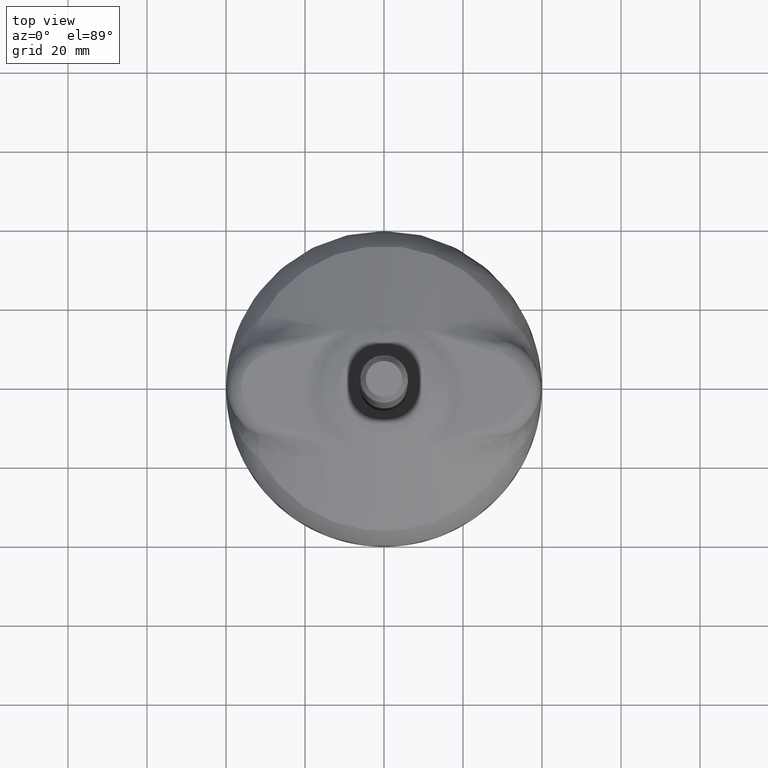
[diagram: clean part render]
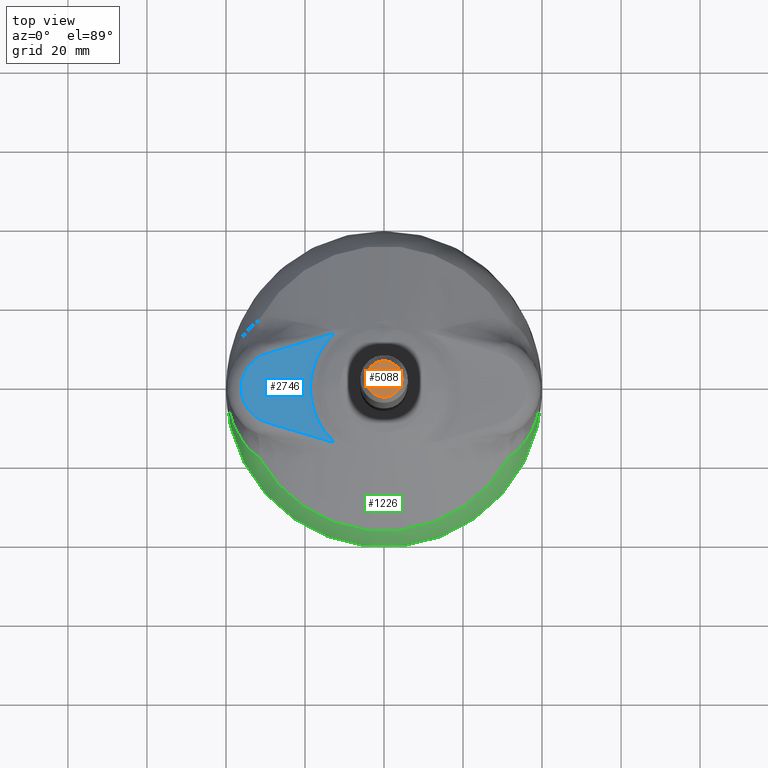
[diagram: same view with three faces highlighted in distinct colors, each labeled with its STEP entity id]
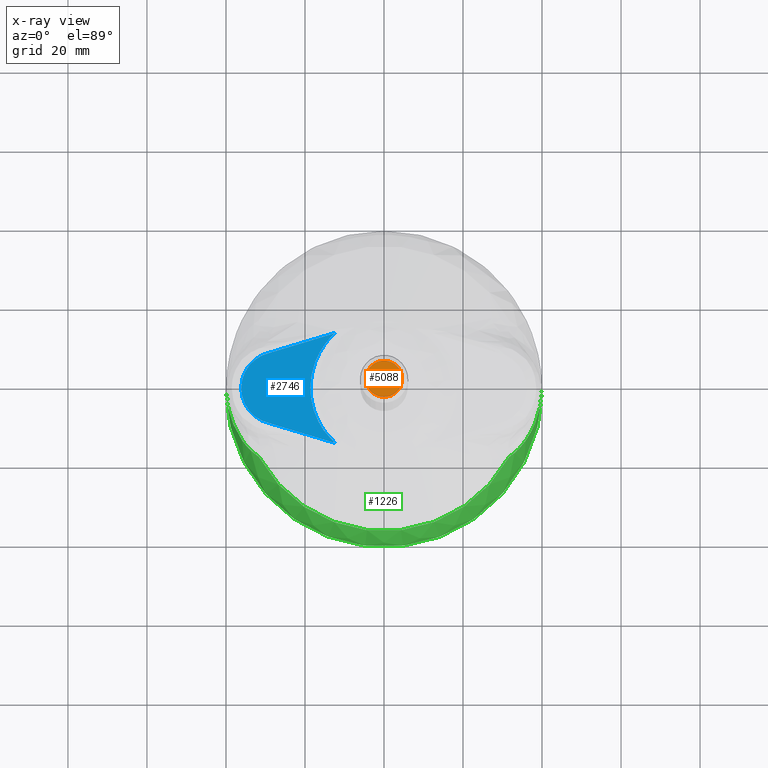
[diagram: x-ray of the same camera — body ghosted, the three highlighted faces saturated]
A machine part, top view with three faces highlighted in distinct colors.
The next image is the same camera in x-ray (body ghosted, the three faces saturated) — at least one of them is partly hidden behind the body in this view.
Their STEP definitions:

[orange] entity #5088 — the highlighted planar face has unit normal (0, 0, 1).
#5051=CARTESIAN_POINT('',(4.584953001807092,4.085621E-014,146.539294837048630));
#5052=VERTEX_POINT('',#5051);
#5059=CARTESIAN_POINT('',(-4.584959343808055,4.085621E-014,146.539294837048630));
#5060=VERTEX_POINT('',#5059);
#5061=CARTESIAN_POINT('',(-0.000003171000481,4.085621E-014,146.539294837048630));
#5062=DIRECTION('',(0.0,0.0,1.0));
#5063=DIRECTION('',(1.0,0.0,0.0));
#5064=AXIS2_PLACEMENT_3D('',#5061,#5062,#5063);
#5065=CIRCLE('',#5064,4.584956172807574);
#5066=EDGE_CURVE('',#5060,#5052,#5065,.T.);
#5068=CARTESIAN_POINT('',(-0.000003171000481,4.085621E-014,146.539294837048630));
#5069=DIRECTION('',(0.0,0.0,1.0));
#5070=DIRECTION('',(1.0,0.0,0.0));
#5071=AXIS2_PLACEMENT_3D('',#5068,#5069,#5070);
#5072=CIRCLE('',#5071,4.584956172807574);
#5073=EDGE_CURVE('',#5052,#5060,#5072,.T.);
#5079=CARTESIAN_POINT('',(9.169909174614666,-9.169912345615106,146.539294837048630));
#5080=DIRECTION('',(0.0,0.0,1.0));
#5081=DIRECTION('',(0.0,1.0,0.0));
#5082=AXIS2_PLACEMENT_3D('',#5079,#5080,#5081);
#5083=PLANE('',#5082);
#5084=ORIENTED_EDGE('',*,*,#5073,.T.);
#5085=ORIENTED_EDGE('',*,*,#5066,.T.);
#5086=EDGE_LOOP('',(#5084,#5085));
#5087=FACE_OUTER_BOUND('',#5086,.T.);
#5088=ADVANCED_FACE('',(#5087),#5083,.T.);

[blue] entity #2746 — the highlighted planar face has unit normal (0, 0, 1).
#2683=CARTESIAN_POINT('',(-37.309747507637290,-15.278409964417257,14.330000000000002));
#2684=DIRECTION('',(0.0,0.0,1.0));
#2685=DIRECTION('',(1.0,0.0,0.0));
#2686=AXIS2_PLACEMENT_3D('',#2683,#2684,#2685);
#2687=PLANE('',#2686);
#2688=CARTESIAN_POINT('',(-28.897113963589550,-8.925111753766824,14.330000000000002));
#2689=VERTEX_POINT('',#2688);
#2690=CARTESIAN_POINT('',(-12.420178360743899,-13.889462560796733,14.330000000000002));
#2691=VERTEX_POINT('',#2690);
#2692=CARTESIAN_POINT('',(-28.897113963589550,-8.925111753766824,14.330000000000002));
#2693=CARTESIAN_POINT('',(-23.305689186745074,-10.113605779162061,14.330000000000002));
#2694=CARTESIAN_POINT('',(-17.840677278317742,-11.896825591541797,14.330000000000002));
#2695=CARTESIAN_POINT('',(-12.420178360712672,-13.889462560808209,14.330000000000002));
#2696=B_SPLINE_CURVE_WITH_KNOTS('',3,(#2692,#2693,#2694,#2695),.UNSPECIFIED.,.F.,.U.,(4,4),(0.416911499926139,1.0),.UNSPECIFIED.);
#2697=EDGE_CURVE('',#2689,#2691,#2696,.T.);
#2698=ORIENTED_EDGE('',*,*,#2697,.T.);
#2699=CARTESIAN_POINT('',(-12.420115929173068,13.889485511361253,14.330000000000002));
#2700=VERTEX_POINT('',#2699);
#2701=CARTESIAN_POINT('',(-12.420178360743909,-13.889462560796741,14.330000000000002));
#2702=CARTESIAN_POINT('',(-15.388571797973048,-11.234794788703830,14.330000000000002));
#2703=CARTESIAN_POINT('',(-17.012817052940562,-7.598803644974612,14.330000000000002));
#2704=CARTESIAN_POINT('',(-18.634407378995650,-3.968755752723763,14.330000000000002));
#2705=CARTESIAN_POINT('',(-18.632697564015491,0.008979841444431,14.330000000000002));
#2706=CARTESIAN_POINT('',(-18.630989936872805,3.981625622308736,14.330000000000002));
#2707=CARTESIAN_POINT('',(-17.007911705448343,7.609743777669499,14.330000000000002));
#2708=CARTESIAN_POINT('',(-16.212342403799980,9.388105024388267,14.330000000000002));
#2709=CARTESIAN_POINT('',(-15.039715496769062,10.992614028233978,14.330000000000002));
#2710=CARTESIAN_POINT('',(-13.870618114521241,12.592293572462300,14.330000000000002));
#2711=CARTESIAN_POINT('',(-12.420115929173068,13.889485511361261,14.330000000000002));
#2712=B_SPLINE_CURVE_WITH_KNOTS('',2,(#2701,#2702,#2703,#2704,#2705,#2706,#2707,#2708,#2709,#2710,#2711),.UNSPECIFIED.,.F.,.U.,(3,2,2,2,2,3),(0.0,0.250000000000000,0.500000000000000,0.750000000000000,0.875000000000000,1.0),.UNSPECIFIED.);
#2713=EDGE_CURVE('',#2691,#2700,#2712,.T.);
#2714=ORIENTED_EDGE('',*,*,#2713,.T.);
#2715=CARTESIAN_POINT('',(-28.897113963589540,8.925111753766824,14.330000000000002));
#2716=VERTEX_POINT('',#2715);
#2717=CARTESIAN_POINT('',(-12.420115929141829,13.889485511372738,14.330000000000002));
#2718=CARTESIAN_POINT('',(-17.840635315480135,11.896839283920851,14.330000000000002));
#2719=CARTESIAN_POINT('',(-23.305667719997675,10.113610342060069,14.330000000000002));
#2720=CARTESIAN_POINT('',(-28.897113963589540,8.925111753766821,14.330000000000002));
#2721=B_SPLINE_CURVE_WITH_KNOTS('',3,(#2717,#2718,#2719,#2720),.UNSPECIFIED.,.F.,.U.,(4,4),(0.0,0.583090738682809),.UNSPECIFIED.);
#2722=EDGE_CURVE('',#2700,#2716,#2721,.T.);
#2723=ORIENTED_EDGE('',*,*,#2722,.T.);
#2724=CARTESIAN_POINT('',(-28.897113963589540,8.925111753766824,14.330000000000002));
#2725=CARTESIAN_POINT('',(-30.417683649596864,8.601734128808392,14.330000000000002));
#2726=CARTESIAN_POINT('',(-31.766132545082975,7.775344840583932,14.330000000000002));
#2727=CARTESIAN_POINT('',(-33.112827959470245,6.950030163345494,14.330000000000002));
#2728=CARTESIAN_POINT('',(-34.091094376896969,5.742236462915449,14.330000000000002));
#2729=CARTESIAN_POINT('',(-35.067778630808156,4.536396143581866,14.330000000000002));
#2730=CARTESIAN_POINT('',(-35.596387713008603,3.044132437707593,14.330000000000002));
#2731=CARTESIAN_POINT('',(-36.124359953871490,1.553666535250672,14.330000000000002));
#2732=CARTESIAN_POINT('',(-36.124526956280363,8.673617E-015,14.330000000000002));
#2733=CARTESIAN_POINT('',(-36.124693753747387,-1.551759908487576,14.330000000000002));
#2734=CARTESIAN_POINT('',(-35.596387713008603,-3.044132437707582,14.330000000000002));
#2735=CARTESIAN_POINT('',(-35.068718623181702,-4.534705691564289,14.330000000000002));
#2736=CARTESIAN_POINT('',(-34.091094376896990,-5.742236462915442,14.330000000000002));
#2737=CARTESIAN_POINT('',(-33.114286892698537,-6.948758395384155,14.330000000000002));
#2738=CARTESIAN_POINT('',(-31.766132545083007,-7.775344840584064,14.330000000000002));
#2739=CARTESIAN_POINT('',(-30.418626953520125,-8.601533517560831,14.330000000000002));
#2740=CARTESIAN_POINT('',(-28.897113963589561,-8.925111753766817,14.330000000000002));
#2741=B_SPLINE_CURVE_WITH_KNOTS('',2,(#2724,#2725,#2726,#2727,#2728,#2729,#2730,#2731,#2732,#2733,#2734,#2735,#2736,#2737,#2738,#2739,#2740),.UNSPECIFIED.,.F.,.U.,(3,2,2,2,2,2,2,2,3),(0.0,0.125000000000000,0.250000000000000,0.375000000000000,0.500000000000000,0.625000000000000,0.750000000000000,0.875000000000000,1.0),.UNSPECIFIED.);
#2742=EDGE_CURVE('',#2716,#2689,#2741,.T.);
#2743=ORIENTED_EDGE('',*,*,#2742,.T.);
#2744=EDGE_LOOP('',(#2698,#2714,#2723,#2743));
#2745=FACE_OUTER_BOUND('',#2744,.T.);
#2746=ADVANCED_FACE('',(#2745),#2687,.T.);

[green] entity #1226 — the highlighted face is a freeform B-spline surface patch.
#91=CARTESIAN_POINT('',(-39.994937432632277,-0.005081542291189,0.284549858767341));
#92=VERTEX_POINT('',#91);
#246=CARTESIAN_POINT('',(39.994937684459181,-0.001629774099398,0.284555169395803));
#247=VERTEX_POINT('',#246);
#513=CARTESIAN_POINT('',(-31.670606601228080,-17.322779921263709,6.870359104627349));
#514=VERTEX_POINT('',#513);
#544=CARTESIAN_POINT('',(31.670606317372449,-17.322778772038770,6.870363310759960));
#545=VERTEX_POINT('',#544);
#546=CARTESIAN_POINT('',(-0.000000456221617,0.000002086571564,6.870355946652809));
#547=DIRECTION('',(0.000000066404364,-0.000000303706472,-0.999999999999952));
#548=DIRECTION('',(3.866960E-029,0.999999999999954,-0.000000303706472));
#549=AXIS2_PLACEMENT_3D('',#546,#547,#548);
#550=CIRCLE('',#549,36.098560498766609);
#551=EDGE_CURVE('',#545,#514,#550,.T.);
#917=CARTESIAN_POINT('',(5.551115E-014,39.999999999998046,-0.000012949107838));
#918=CARTESIAN_POINT('',(0.000000531234968,39.999997570346267,-8.000012949107452));
#919=CARTESIAN_POINT('',(0.000000531234968,31.999997570346640,-8.000010519455676));
#920=CARTESIAN_POINT('',(0.000000531234968,23.999997570347006,-8.000008089803901));
#921=CARTESIAN_POINT('',(5.551115E-014,23.999999999998785,-0.000008089804286));
#922=CARTESIAN_POINT('',(-0.000000531234856,24.000002429650561,7.999991910195329));
#923=CARTESIAN_POINT('',(-0.000000531234856,32.000002429650195,7.999989480543552));
#924=CARTESIAN_POINT('',(-0.000000531234856,40.000002429649825,7.999987050891776));
#925=CARTESIAN_POINT('',(5.551115E-014,39.999999999998046,-0.000012949107838));
#926=CARTESIAN_POINT('',(-40.000000000000007,39.999999999997243,-0.000015605282398));
#927=CARTESIAN_POINT('',(-39.999999468765076,39.999997570345457,-8.000015605282012));
#928=CARTESIAN_POINT('',(-31.999999468765104,31.999997570345997,-8.000012644395325));
#929=CARTESIAN_POINT('',(-23.999999468765111,23.999997570346522,-8.000009683508639));
#930=CARTESIAN_POINT('',(-24.000000000000032,23.999999999998302,-0.000009683509022));
#931=CARTESIAN_POINT('',(-24.000000531234935,24.000002429650081,7.999990316490593));
#932=CARTESIAN_POINT('',(-32.000000531234924,32.000002429649555,7.999987355603905));
#933=CARTESIAN_POINT('',(-40.000000531234910,40.000002429649015,7.999984394717217));
#934=CARTESIAN_POINT('',(-40.000000000000007,39.999999999997243,-0.000015605282398));
#935=CARTESIAN_POINT('',(-40.0,-1.049920E-012,-0.000003457023518));
#936=CARTESIAN_POINT('',(-39.999999468765076,-0.000002429652826,-8.000003457023134));
#937=CARTESIAN_POINT('',(-31.999999468765100,-0.000002429652665,-8.000002925788223));
#938=CARTESIAN_POINT('',(-23.999999468765111,-0.000002429652503,-8.000002394553311));
#939=CARTESIAN_POINT('',(-24.000000000000028,-7.272414E-013,-0.000002394553694));
#940=CARTESIAN_POINT('',(-24.000000531234935,0.000002429651049,7.999997605445922));
#941=CARTESIAN_POINT('',(-32.000000531234924,0.000002429650887,7.999997074211010));
#942=CARTESIAN_POINT('',(-40.000000531234910,0.000002429650726,7.999996542976098));
#943=CARTESIAN_POINT('',(-40.0,-1.049920E-012,-0.000003457023518));
#944=CARTESIAN_POINT('',(-40.000000000000007,-39.999999999999339,0.000008691235362));
#945=CARTESIAN_POINT('',(-39.999999468765068,-40.000002429651104,-7.999991308764255));
#946=CARTESIAN_POINT('',(-31.999999468765104,-32.000002429651310,-7.999993207181119));
#947=CARTESIAN_POINT('',(-23.999999468765111,-24.000002429651527,-7.999995105597984));
#948=CARTESIAN_POINT('',(-24.000000000000032,-23.999999999999751,0.000004894401634));
#949=CARTESIAN_POINT('',(-24.000000531234935,-23.999997570347972,8.000004894401251));
#950=CARTESIAN_POINT('',(-32.000000531234924,-31.999997570347769,8.000006792818118));
#951=CARTESIAN_POINT('',(-40.000000531234903,-39.999997570347560,8.000008691234980));
#952=CARTESIAN_POINT('',(-40.000000000000007,-39.999999999999339,0.000008691235362));
#953=CARTESIAN_POINT('',(5.551115E-014,-39.999999999998529,0.000011347409922));
#954=CARTESIAN_POINT('',(0.000000531234968,-40.000002429650294,-7.999988652589696));
#955=CARTESIAN_POINT('',(0.000000531234968,-32.000002429650671,-7.999991082241472));
#956=CARTESIAN_POINT('',(0.000000531234968,-24.000002429651040,-7.999993511893248));
#957=CARTESIAN_POINT('',(5.551115E-014,-23.999999999999268,0.000006488106370));
#958=CARTESIAN_POINT('',(-0.000000531234856,-23.999997570347489,8.000006488105989));
#959=CARTESIAN_POINT('',(-0.000000531234856,-31.999997570347123,8.000008917757764));
#960=CARTESIAN_POINT('',(-0.000000531234856,-39.999997570346750,8.000011347409540));
#961=CARTESIAN_POINT('',(5.551115E-014,-39.999999999998529,0.000011347409922));
#962=CARTESIAN_POINT('',(40.000000000000107,-39.999999999997726,0.000014003584482));
#963=CARTESIAN_POINT('',(40.000000531235017,-40.000002429649484,-7.999985996415134));
#964=CARTESIAN_POINT('',(32.000000531235038,-32.000002429650024,-7.999988957301821));
#965=CARTESIAN_POINT('',(24.000000531235049,-24.000002429650564,-7.999991918188512));
#966=CARTESIAN_POINT('',(24.000000000000139,-23.999999999998785,0.000008081811106));
#967=CARTESIAN_POINT('',(23.999999468765225,-23.999997570347006,8.000008081810721));
#968=CARTESIAN_POINT('',(31.999999468765214,-31.999997570346476,8.000011042697413));
#969=CARTESIAN_POINT('',(39.999999468765196,-39.999997570345940,8.000014003584097));
#970=CARTESIAN_POINT('',(40.000000000000107,-39.999999999997726,0.000014003584482));
#971=CARTESIAN_POINT('',(40.000000000000107,5.634744E-013,0.000001855325602));
#972=CARTESIAN_POINT('',(40.000000531235017,-0.000002429651213,-7.999998144674013));
#973=CARTESIAN_POINT('',(32.000000531235038,-0.000002429651374,-7.999998675908926));
#974=CARTESIAN_POINT('',(24.000000531235045,-0.000002429651535,-7.999999207143838));
#975=CARTESIAN_POINT('',(24.000000000000139,2.407954E-013,0.000000792855778));
#976=CARTESIAN_POINT('',(23.999999468765221,0.000002429652017,8.000000792855394));
#977=CARTESIAN_POINT('',(31.999999468765214,0.000002429652178,8.000001324090306));
#978=CARTESIAN_POINT('',(39.999999468765196,0.000002429652339,8.000001855325218));
#979=CARTESIAN_POINT('',(40.000000000000107,5.634744E-013,0.000001855325602));
#980=CARTESIAN_POINT('',(40.000000000000099,39.999999999998856,-0.000010292933278));
#981=CARTESIAN_POINT('',(40.000000531235017,39.999997570347077,-8.000010292932895));
#982=CARTESIAN_POINT('',(32.000000531235038,31.999997570347286,-8.000008394516028));
#983=CARTESIAN_POINT('',(24.000000531235049,23.999997570347489,-8.000006496099168));
#984=CARTESIAN_POINT('',(24.000000000000139,23.999999999999268,-0.000006496099550));
#985=CARTESIAN_POINT('',(23.999999468765225,24.000002429651044,7.999993503900065));
#986=CARTESIAN_POINT('',(31.999999468765214,32.000002429650841,7.999991605483203));
#987=CARTESIAN_POINT('',(39.999999468765196,40.000002429650635,7.999989707066336));
#988=CARTESIAN_POINT('',(40.000000000000099,39.999999999998856,-0.000010292933278));
#989=CARTESIAN_POINT('',(5.551115E-014,39.999999999998046,-0.000012949107838));
#990=CARTESIAN_POINT('',(0.000000531234968,39.999997570346267,-8.000012949107452));
#991=CARTESIAN_POINT('',(0.000000531234968,31.999997570346640,-8.000010519455676));
#992=CARTESIAN_POINT('',(0.000000531234968,23.999997570347006,-8.000008089803901));
#993=CARTESIAN_POINT('',(5.551115E-014,23.999999999998785,-0.000008089804286));
#994=CARTESIAN_POINT('',(-0.000000531234856,24.000002429650561,7.999991910195329));
#995=CARTESIAN_POINT('',(-0.000000531234856,32.000002429650195,7.999989480543552));
#996=CARTESIAN_POINT('',(-0.000000531234856,40.000002429649825,7.999987050891776));
#997=CARTESIAN_POINT('',(5.551115E-014,39.999999999998046,-0.000012949107838));
#1005=(BOUNDED_SURFACE()B_SPLINE_SURFACE(2,2,((#917,#926,#935,#944,#953,#962,#971,#980,#989),(#918,#927,#936,#945,#954,#963,#972,#981,#990),(#919,#928,#937,#946,#955,#964,#973,#982,#991),(#920,#929,#938,#947,#956,#965,#974,#983,#992),(#921,#930,#939,#948,#957,#966,#975,#984,#993),(#922,#931,#940,#949,#958,#967,#976,#985,#994),(#923,#932,#941,#950,#959,#968,#977,#986,#995),(#924,#933,#942,#951,#960,#969,#978,#987,#996),(#925,#934,#943,#952,#961,#970,#979,#988,#997)),.UNSPECIFIED.,.T.,.T.,.U.)B_SPLINE_SURFACE_WITH_KNOTS((3,2,2,2,3),(3,2,2,2,3),(0.0,0.250000000000000,0.500000000000000,0.750000000000000,1.0),(0.0,0.250000000000000,0.500000000000000,0.750000000000000,1.0),.UNSPECIFIED.)GEOMETRIC_REPRESENTATION_ITEM()RATIONAL_B_SPLINE_SURFACE(((1.0,0.707106781186548,1.0,0.707106781186548,1.0,0.707106781186548,1.0,0.707106781186548,1.0),(0.707106781186548,0.500000000000000,0.707106781186548,0.500000000000000,0.707106781186548,0.500000000000000,0.707106781186548,0.500000000000000,0.707106781186548),(1.0,0.707106781186548,1.0,0.707106781186548,1.0,0.707106781186548,1.0,0.707106781186548,1.0),(0.707106781186548,0.500000000000000,0.707106781186548,0.500000000000000,0.707106781186548,0.500000000000000,0.707106781186548,0.500000000000000,0.707106781186548),(1.0,0.707106781186548,1.0,0.707106781186548,1.0,0.707106781186548,1.0,0.707106781186548,1.0),(0.707106781186548,0.500000000000000,0.707106781186548,0.500000000000000,0.707106781186548,0.500000000000000,0.707106781186548,0.500000000000000,0.707106781186548),(1.0,0.707106781186548,1.0,0.707106781186548,1.0,0.707106781186548,1.0,0.707106781186548,1.0),(0.707106781186548,0.500000000000000,0.707106781186548,0.500000000000000,0.707106781186548,0.500000000000000,0.707106781186548,0.500000000000000,0.707106781186548),(1.0,0.707106781186548,1.0,0.707106781186548,1.0,0.707106781186548,1.0,0.707106781186548,1.0)))REPRESENTATION_ITEM('')SURFACE());
#1006=CARTESIAN_POINT('',(35.917154190531242,-13.085913397263351,5.022732826112390));
#1007=VERTEX_POINT('',#1006);
#1008=CARTESIAN_POINT('',(39.994589123065062,-0.001629756970226,0.294185318677056));
#1009=CARTESIAN_POINT('',(39.994576306624623,-0.004108145963089,0.294526924453620));
#1010=CARTESIAN_POINT('',(39.994539660740777,-0.011194571840447,0.295503673471578));
#1011=CARTESIAN_POINT('',(39.994391676757552,-0.024649927621282,0.299343555323718));
#1012=CARTESIAN_POINT('',(39.994163992483244,-0.044282428877011,0.304960354234407));
#1013=CARTESIAN_POINT('',(39.993818056288731,-0.069993452801480,0.313014519578775));
#1014=CARTESIAN_POINT('',(39.993344919941897,-0.101825274685294,0.323249068796398));
#1015=CARTESIAN_POINT('',(39.992717163969331,-0.139759556272320,0.335773816151645));
#1016=CARTESIAN_POINT('',(39.991908058456808,-0.183801129657306,0.350553700099842));
#1017=CARTESIAN_POINT('',(39.990884307425482,-0.233946654938129,0.367602621560298));
#1018=CARTESIAN_POINT('',(39.989608555014811,-0.290195440366192,0.386916557644944));
#1019=CARTESIAN_POINT('',(39.988038524951449,-0.352545648391920,0.408496604885048));
#1020=CARTESIAN_POINT('',(39.986127297417553,-0.420995415948952,0.432341660389438));
#1021=CARTESIAN_POINT('',(39.983823221579250,-0.495542386643511,0.458450855255876));
#1022=CARTESIAN_POINT('',(39.981069947520119,-0.576183750003804,0.486822825147230));
#1023=CARTESIAN_POINT('',(39.977806423565347,-0.662916119649928,0.517455936681590));
#1024=CARTESIAN_POINT('',(39.973966906750967,-0.755735456135633,0.550348199713273));
#1025=CARTESIAN_POINT('',(39.969480971794212,-0.854636969907940,0.585497262528041));
#1026=CARTESIAN_POINT('',(39.964273523180324,-0.959615023249384,0.622900373018523));
#1027=CARTESIAN_POINT('',(39.958264809222662,-1.070663025107330,0.662554343113818));
#1028=CARTESIAN_POINT('',(39.951370438735772,-1.187773320401287,0.704455506580117));
#1029=CARTESIAN_POINT('',(39.943501400467810,-1.310937073227309,0.748599673881690));
#1030=CARTESIAN_POINT('',(39.934564085615833,-1.440144144097821,0.794982083503297));
#1031=CARTESIAN_POINT('',(39.924460313720999,-1.575382961197570,0.843597350232258));
#1032=CARTESIAN_POINT('',(39.913087362273266,-1.716640385722999,0.894439410479625));
#1033=CARTESIAN_POINT('',(39.900338000364961,-1.863901571380281,0.947501464780366));
#1034=CARTESIAN_POINT('',(39.886100526752486,-2.017149818144112,1.002775917557616));
#1035=CARTESIAN_POINT('',(39.870258812695916,-2.176366420398517,1.060254314229056));
#1036=CARTESIAN_POINT('',(39.852692349962766,-2.341530509602155,1.119927275721479));
#1037=CARTESIAN_POINT('',(39.833276304393067,-2.512618891641028,1.181784430456083));
#1038=CARTESIAN_POINT('',(39.811881575435322,-2.689605879053092,1.245814343864695));
#1039=CARTESIAN_POINT('',(39.788374862074356,-2.872463118331697,1.312004445498028));
#1040=CARTESIAN_POINT('',(39.762618735580432,-3.061159412538220,1.380340953788548));
#1041=CARTESIAN_POINT('',(39.734471719519135,-3.255660539479008,1.450808798534230));
#1042=CARTESIAN_POINT('',(39.703788377468996,-3.455929065727553,1.523391541174373));
#1043=CARTESIAN_POINT('',(39.670419408899249,-3.661924156801594,1.598071292929027));
#1044=CARTESIAN_POINT('',(39.634211753662463,-3.873601383827914,1.674828630897855));
#1045=CARTESIAN_POINT('',(39.595008705578735,-4.090912527080437,1.753642512149783));
#1046=CARTESIAN_POINT('',(39.552650035508776,-4.313805376720596,1.834490186115324));
#1047=CARTESIAN_POINT('',(39.506972124633151,-4.542223531445979,1.917347104538345));
#1048=CARTESIAN_POINT('',(39.457808107403324,-4.776106194450977,2.002186832378192));
#1049=CARTESIAN_POINT('',(39.404988028479522,-5.015387971325357,2.088980947055310));
#1050=CARTESIAN_POINT('',(39.348338999148446,-5.259998654455858,2.177698975465606));
#1051=CARTESIAN_POINT('',(39.287685411543315,-5.509863056335114,2.268308178103081));
#1052=CARTESIAN_POINT('',(39.222848987286611,-5.764900653338751,2.360773918169670));
#1053=CARTESIAN_POINT('',(39.153649525548090,-6.025025964120196,2.455057765918982));
#1054=CARTESIAN_POINT('',(39.079903013914176,-6.290146098936889,2.551124338156082));
#1055=CARTESIAN_POINT('',(38.973794369670372,-6.655262412191130,2.683352886831766));
#1056=CARTESIAN_POINT('',(38.831572335986451,-7.113621105279835,2.849382372015068));
#1057=CARTESIAN_POINT('',(38.648133733437376,-7.657771606201348,3.046679062761260));
#1058=CARTESIAN_POINT('',(38.455276786595064,-8.187734204897717,3.238973874053507));
#1059=CARTESIAN_POINT('',(38.253773730621567,-8.703445032204680,3.426239495662126));
#1060=CARTESIAN_POINT('',(38.044382382602244,-9.204878532674153,3.608449974881525));
#1061=CARTESIAN_POINT('',(37.827841943130963,-9.692036086797426,3.785592917309000));
#1062=CARTESIAN_POINT('',(37.604873387916982,-10.164946958570530,3.957665704057193));
#1063=CARTESIAN_POINT('',(37.376176569110143,-10.623664690823414,4.124675395092408));
#1064=CARTESIAN_POINT('',(37.142436534729107,-11.068269636374851,4.286639415678557));
#1065=CARTESIAN_POINT('',(36.904297962852539,-11.498852126399568,4.443579773900142));
#1066=CARTESIAN_POINT('',(36.662455127975164,-11.915565037156671,4.595541636757249));
#1067=CARTESIAN_POINT('',(36.417325285533195,-12.318426127667221,4.742523744745332));
#1068=CARTESIAN_POINT('',(36.170225727425667,-12.708023451903259,4.884727057381109));
#1069=CARTESIAN_POINT('',(36.000850647795751,-12.960936680993171,4.977091210043604));
#1070=CARTESIAN_POINT('',(35.917154190531257,-13.085913397263363,5.022732826112384));
#1071=B_SPLINE_CURVE_WITH_KNOTS('',3,(#1008,#1009,#1010,#1011,#1012,#1013,#1014,#1015,#1016,#1017,#1018,#1019,#1020,#1021,#1022,#1023,#1024,#1025,#1026,#1027,#1028,#1029,#1030,#1031,#1032,#1033,#1034,#1035,#1036,#1037,#1038,#1039,#1040,#1041,#1042,#1043,#1044,#1045,#1046,#1047,#1048,#1049,#1050,#1051,#1052,#1053,#1054,#1055,#1056,#1057,#1058,#1059,#1060,#1061,#1062,#1063,#1064,#1065,#1066,#1067,#1068,#1069,#1070),.UNSPECIFIED.,.F.,.U.,(4,1,1,1,1,1,1,1,1,1,1,1,1,1,1,1,1,1,1,1,1,1,1,1,1,1,1,1,1,1,1,1,1,1,1,1,1,1,1,1,1,1,1,1,1,1,1,1,1,1,1,1,1,1,1,1,1,1,1,1,4),(0.0,0.000510691196638,0.001460212792107,0.002851656961855,0.004685876341743,0.006963219209959,0.009683855478844,0.012847874319519,0.016455321480673,0.020506215807147,0.025000557208376,0.029938330631308,0.035319507966509,0.041144048788708,0.047411900386884,0.054122997328739,0.061277260698244,0.068874597088488,0.076914897400528,0.085398035480518,0.094323866616492,0.103692225909268,0.113502926527711,0.123755757855744,0.134450483536738,0.145586839419704,0.157164531410903,0.169183233234031,0.181642584101816,0.194542186301682,0.207881602698083,0.221660354154133,0.235877916875197,0.250533719677217,0.265627141182776,0.281157506947956,0.297124086523379,0.313526090453004,0.330362667214489,0.347632900105264,0.365335804078722,0.383470322535245,0.402035324073158,0.421029599205021,0.440451857045039,0.460300721973782,0.480574730286772,0.522691278167157,0.564036589854413,0.604609476924509,0.644409204168844,0.683435466863038,0.721688368134250,0.759168396496550,0.795876403618450,0.831813582381417,0.866981445283133,0.901381803234370,0.935016744793781,0.967888615880453,1.0),.UNSPECIFIED.);
#1072=EDGE_CURVE('',#247,#1007,#1071,.T.);
#1073=ORIENTED_EDGE('',*,*,#1072,.T.);
#1074=CARTESIAN_POINT('',(35.916736875113422,-13.085364022779208,5.023448743076600));
#1075=CARTESIAN_POINT('',(35.878930371718688,-13.140608615673871,5.043804082719475));
#1076=CARTESIAN_POINT('',(35.802812577795414,-13.251826774861316,5.084785405295588));
#1077=CARTESIAN_POINT('',(35.685498479576275,-13.417490974005679,5.147189741906935));
#1078=CARTESIAN_POINT('',(35.565099871834931,-13.583300697280624,5.210615587318564));
#1079=CARTESIAN_POINT('',(35.441567598729037,-13.748801633931691,5.274971016959508));
#1080=CARTESIAN_POINT('',(35.314912572992398,-13.913972010890992,5.340194135545547));
#1081=CARTESIAN_POINT('',(35.185082240976939,-14.078738911213071,5.406238053281136));
#1082=CARTESIAN_POINT('',(35.052042326807502,-14.243041624092930,5.473049323170550));
#1083=CARTESIAN_POINT('',(34.915754778915883,-14.406814485968662,5.540573739243317));
#1084=CARTESIAN_POINT('',(34.776183880852088,-14.569991569435492,5.608754712572890));
#1085=CARTESIAN_POINT('',(34.633294724700754,-14.732505450556170,5.677533662021432));
#1086=CARTESIAN_POINT('',(34.487053758751578,-14.894287587658948,5.746849859992075));
#1087=CARTESIAN_POINT('',(34.337428775255070,-15.055268268668518,5.816640427656889));
#1088=CARTESIAN_POINT('',(34.184389052486026,-15.215376681199057,5.886840291526406));
#1089=CARTESIAN_POINT('',(34.027905457377997,-15.374540955424052,5.957382152620381));
#1090=CARTESIAN_POINT('',(33.867950560874320,-15.532688220326799,6.028196454442152));
#1091=CARTESIAN_POINT('',(33.704498752560433,-15.689744663593620,6.099211354186815));
#1092=CARTESIAN_POINT('',(33.537526354773519,-15.845635594038479,6.170352694479374));
#1093=CARTESIAN_POINT('',(33.367011748253006,-16.000285522032460,6.241543983180772));
#1094=CARTESIAN_POINT('',(33.192935459397447,-16.153618197520132,6.312706354718997));
#1095=CARTESIAN_POINT('',(33.015280397614937,-16.305556835027801,6.383758613742326));
#1096=CARTESIAN_POINT('',(32.834031530819502,-16.456023661126725,6.454616982041219));
#1097=CARTESIAN_POINT('',(32.649177682514953,-16.604942044794210,6.525195978912885));
#1098=CARTESIAN_POINT('',(32.460705333178929,-16.752228919898766,6.595405044429593));
#1099=CARTESIAN_POINT('',(32.268622560208613,-16.897823828424830,6.665161225367757));
#1100=CARTESIAN_POINT('',(32.072869395440293,-17.041579982501737,6.734341344092651));
#1101=CARTESIAN_POINT('',(31.873656174453849,-17.183675288168750,6.802962222362304));
#1102=CARTESIAN_POINT('',(31.738429865767294,-17.276314854231678,6.847849721996736));
#1103=CARTESIAN_POINT('',(31.670606317372467,-17.322778772038589,6.870363310760266));
#1104=B_SPLINE_CURVE_WITH_KNOTS('',3,(#1074,#1075,#1076,#1077,#1078,#1079,#1080,#1081,#1082,#1083,#1084,#1085,#1086,#1087,#1088,#1089,#1090,#1091,#1092,#1093,#1094,#1095,#1096,#1097,#1098,#1099,#1100,#1101,#1102,#1103),.UNSPECIFIED.,.F.,.U.,(4,1,1,1,1,1,1,1,1,1,1,1,1,1,1,1,1,1,1,1,1,1,1,1,1,1,1,4),(0.000152494362029,0.033404487973808,0.067097070965670,0.101077178043212,0.135344156425436,0.169897272146304,0.204735710735644,0.239858577923119,0.275264900371078,0.310953626442128,0.346923627007338,0.383173696300982,0.419702552827783,0.456508840328649,0.493591128810883,0.530947915648893,0.568577626761371,0.606478617870977,0.644649175852462,0.683087520175171,0.721791804445842,0.760760118057481,0.799990487950089,0.839480880488872,0.879229203465503,0.919233308227783,0.959490991942994,1.0),.UNSPECIFIED.);
#1105=EDGE_CURVE('',#1007,#545,#1104,.T.);
#1106=ORIENTED_EDGE('',*,*,#1105,.T.);
#1107=ORIENTED_EDGE('',*,*,#551,.T.);
#1108=CARTESIAN_POINT('',(-35.916734724480143,-13.085374000186729,5.023446255671954));
#1109=VERTEX_POINT('',#1108);
#1110=CARTESIAN_POINT('',(-31.670606601228066,-17.322779921263699,6.870359104627624));
#1111=CARTESIAN_POINT('',(-31.726188359470456,-17.284766016602109,6.851938085556578));
#1112=CARTESIAN_POINT('',(-31.837068538854520,-17.208931989373532,6.815189951571187));
#1113=CARTESIAN_POINT('',(-32.000957045608800,-17.093072694905889,6.759191869212343));
#1114=CARTESIAN_POINT('',(-32.162523254811717,-16.976086185902766,6.702797037384383));
#1115=CARTESIAN_POINT('',(-32.321625001051224,-16.857843285914889,6.645982938023932));
#1116=CARTESIAN_POINT('',(-32.478301226133823,-16.738433143357842,6.588821792881999));
#1117=CARTESIAN_POINT('',(-32.632544430870993,-16.617886834619014,6.531359254417438));
#1118=CARTESIAN_POINT('',(-32.784361114179873,-16.496250790605881,6.473646655684638));
#1119=CARTESIAN_POINT('',(-32.933755650066303,-16.373567224650600,6.415732437892966));
#1120=CARTESIAN_POINT('',(-33.080734516691280,-16.249879284343962,6.357664431119170));
#1121=CARTESIAN_POINT('',(-33.225305115824938,-16.125229634189651,6.299489251698479));
#1122=CARTESIAN_POINT('',(-33.367476030087325,-15.999660786579090,6.241252467304167));
#1123=CARTESIAN_POINT('',(-33.507256898226828,-15.873214970512601,6.182998559322082));
#1124=CARTESIAN_POINT('',(-33.644658392092722,-15.745934125467070,6.124770940325993));
#1125=CARTESIAN_POINT('',(-33.779692166854247,-15.617859864282050,6.066611958083281));
#1126=CARTESIAN_POINT('',(-33.912370818656242,-15.489033446497739,6.008562904244004));
#1127=CARTESIAN_POINT('',(-34.042707840689708,-15.359495751089941,5.950664022824951));
#1128=CARTESIAN_POINT('',(-34.170717580128517,-15.229287251486216,5.892954519725852));
#1129=CARTESIAN_POINT('',(-34.296415195337644,-15.098447992049643,5.835472572884783));
#1130=CARTESIAN_POINT('',(-34.419816613547752,-14.967017566183751,5.778255343121583));
#1131=CARTESIAN_POINT('',(-34.540938489036833,-14.835035096001359,5.721338985584113));
#1132=CARTESIAN_POINT('',(-34.659798161679490,-14.702539213385823,5.664758661808483));
#1133=CARTESIAN_POINT('',(-34.776413616572981,-14.569568042927340,5.608548552166662));
#1134=CARTESIAN_POINT('',(-34.890803442250643,-14.436159184737710,5.552741869326296));
#1135=CARTESIAN_POINT('',(-35.002986796817083,-14.302349704324461,5.497370870215459));
#1136=CARTESIAN_POINT('',(-35.112983347625807,-14.168176102781819,5.442466875563672));
#1137=CARTESIAN_POINT('',(-35.220813311654396,-14.033674365919930,5.388060263309590));
#1138=CARTESIAN_POINT('',(-35.326497126831768,-13.898879727721370,5.334180560248077));
#1139=CARTESIAN_POINT('',(-35.430056489972038,-13.763827495046502,5.280856172222099));
#1140=CARTESIAN_POINT('',(-35.531510349283373,-13.628549957391348,5.228115450957646));
#1141=CARTESIAN_POINT('',(-35.630889537589731,-13.493087763585748,5.175982824592704));
#1142=CARTESIAN_POINT('',(-35.728182557765770,-13.357447868773113,5.124493161886848));
#1143=CARTESIAN_POINT('',(-35.823535643449091,-13.221758815550970,5.073638795782403));
#1144=CARTESIAN_POINT('',(-35.885741903055617,-13.130727990387374,5.040137497689908));
#1145=CARTESIAN_POINT('',(-35.916734724305883,-13.085374000123270,5.023446255522311));
#1146=B_SPLINE_CURVE_WITH_KNOTS('',3,(#1110,#1111,#1112,#1113,#1114,#1115,#1116,#1117,#1118,#1119,#1120,#1121,#1122,#1123,#1124,#1125,#1126,#1127,#1128,#1129,#1130,#1131,#1132,#1133,#1134,#1135,#1136,#1137,#1138,#1139,#1140,#1141,#1142,#1143,#1144,#1145),.UNSPECIFIED.,.F.,.U.,(4,1,1,1,1,1,1,1,1,1,1,1,1,1,1,1,1,1,1,1,1,1,1,1,1,1,1,1,1,1,1,1,1,4),(0.0,0.033182437098455,0.066195721298200,0.099038601843240,0.131709851016515,0.164208265047138,0.196532664974848,0.228681897473034,0.260654835631451,0.292450379700106,0.324067457795556,0.355505026570959,0.386762071851395,0.417837609235755,0.448730684666668,0.479440374970015,0.509965788365243,0.540306064948314,0.570460377148403,0.600427930160146,0.630207962352682,0.659799745657170,0.689202585934191,0.718415823322531,0.747438832570850,0.776271023353796,0.804911840573900,0.833360764650880,0.861617311799783,0.889681034299351,0.917551520752224,0.945228396338305,0.972711323062742,1.0),.UNSPECIFIED.);
#1147=EDGE_CURVE('',#514,#1109,#1146,.T.);
#1148=ORIENTED_EDGE('',*,*,#1147,.T.);
#1149=CARTESIAN_POINT('',(-35.917152071356632,-13.085916719901681,5.022729881222855));
#1150=CARTESIAN_POINT('',(-35.962175831109811,-13.019066554596709,4.998314748633792));
#1151=CARTESIAN_POINT('',(-36.052800690323856,-12.884508985251447,4.949171401318663));
#1152=CARTESIAN_POINT('',(-36.186797701364199,-12.679729416485149,4.874403314837656));
#1153=CARTESIAN_POINT('',(-36.320373843443591,-12.471140972268461,4.798261263111666));
#1154=CARTESIAN_POINT('',(-36.453236719762607,-12.258595628204191,4.720693834942400));
#1155=CARTESIAN_POINT('',(-36.585350627613821,-12.042100928222439,4.641704540072677));
#1156=CARTESIAN_POINT('',(-36.716607556687009,-11.821623386283040,4.561282539566262));
#1157=CARTESIAN_POINT('',(-36.846916896870255,-11.597142434071561,4.479421653093274));
#1158=CARTESIAN_POINT('',(-36.976180960357091,-11.368635788589000,4.396115200297472));
#1159=CARTESIAN_POINT('',(-37.104301673291559,-11.136083539977012,4.311357438515278));
#1160=CARTESIAN_POINT('',(-37.231178764494246,-10.899467132170169,4.225143200722402));
#1161=CARTESIAN_POINT('',(-37.356710277298902,-10.658769738385249,4.137468024847112));
#1162=CARTESIAN_POINT('',(-37.480792450950332,-10.413976257428430,4.048328149342976));
#1163=CARTESIAN_POINT('',(-37.603319777345732,-10.165073414653740,3.957720545518094));
#1164=CARTESIAN_POINT('',(-37.724185013476337,-9.912049835528917,3.865642940108459));
#1165=CARTESIAN_POINT('',(-37.843279209582093,-9.654896127727300,3.772093840741906));
#1166=CARTESIAN_POINT('',(-37.960491736756040,-9.393604961825927,3.677072560888804));
#1167=CARTESIAN_POINT('',(-38.075710318615293,-9.128171153309811,3.580579244963262));
#1168=CARTESIAN_POINT('',(-38.188821065632844,-8.858591744642009,3.482614894291529));
#1169=CARTESIAN_POINT('',(-38.299708513613915,-8.584866089098302,3.383181390240742));
#1170=CARTESIAN_POINT('',(-38.408255662274257,-8.306995930158635,3.282281528718328));
#1171=CARTESIAN_POINT('',(-38.514344029342887,-8.024985499309041,3.179919012002251));
#1172=CARTESIAN_POINT('',(-38.617853662210152,-7.738841545148304,3.076098602684502));
#1173=CARTESIAN_POINT('',(-38.718663327252230,-7.448573623400281,2.970825663421739));
#1174=CARTESIAN_POINT('',(-38.816650042984236,-7.154193398167647,2.864108024364337));
#1175=CARTESIAN_POINT('',(-38.911691116928473,-6.855717688907395,2.755949031149775));
#1176=CARTESIAN_POINT('',(-39.007423502137478,-6.540764862318929,2.641885958638169));
#1177=CARTESIAN_POINT('',(-39.101960143204657,-6.213301831382201,2.523284584980895));
#1178=CARTESIAN_POINT('',(-39.193633673066358,-5.877388456537871,2.401546065768803));
#1179=CARTESIAN_POINT('',(-39.278057975228158,-5.549716447304901,2.282751633689682));
#1180=CARTESIAN_POINT('',(-39.355612091242172,-5.230470398851114,2.166975798106448));
#1181=CARTESIAN_POINT('',(-39.426667242784326,-4.919817590394696,2.054292651717416));
#1182=CARTESIAN_POINT('',(-39.491588190131615,-4.617912195193267,1.944768764240946));
#1183=CARTESIAN_POINT('',(-39.550732071536238,-4.324895077709906,1.838465417906726));
#1184=CARTESIAN_POINT('',(-39.604447955189741,-4.040894724357360,1.735438440553400));
#1185=CARTESIAN_POINT('',(-39.653076272113751,-3.766027881399630,1.635738646738572));
#1186=CARTESIAN_POINT('',(-39.696948339814398,-3.500400261341455,1.539412115176756));
#1187=CARTESIAN_POINT('',(-39.736385919896591,-3.244107221891672,1.446500498933042));
#1188=CARTESIAN_POINT('',(-39.771700820933340,-2.997234438751931,1.357041317478903));
#1189=CARTESIAN_POINT('',(-39.803194540495390,-2.759858563895834,1.271068242878988));
#1190=CARTESIAN_POINT('',(-39.831157944681834,-2.532047868826319,1.188611376354238));
#1191=CARTESIAN_POINT('',(-39.855870982389739,-2.313862870583030,1.109697515593089));
#1192=CARTESIAN_POINT('',(-39.877602431884966,-2.105356938963186,1.034350412182263));
#1193=CARTESIAN_POINT('',(-39.896609677212915,-1.906576883486438,0.962591018812647));
#1194=CARTESIAN_POINT('',(-39.913138512068798,-1.717563518841596,0.894437725879165));
#1195=CARTESIAN_POINT('',(-39.927422968814113,-1.538352207724463,0.829906587057158));
#1196=CARTESIAN_POINT('',(-39.939685170402882,-1.368973380105420,0.769011533587312));
#1197=CARTESIAN_POINT('',(-39.950135203092096,-1.209453028241206,0.711764576329222));
#1198=CARTESIAN_POINT('',(-39.958971007831281,-1.059813176502257,0.658175996614698));
#1199=CARTESIAN_POINT('',(-39.966378288599856,-0.920072326632165,0.608254519608577));
#1200=CARTESIAN_POINT('',(-39.972530435175130,-0.790245874629885,0.562007487487259));
#1201=CARTESIAN_POINT('',(-39.977588460980755,-0.670346511246502,0.519440968564934));
#1202=CARTESIAN_POINT('',(-39.981700946737519,-0.560384566846319,0.480560004782492));
#1203=CARTESIAN_POINT('',(-39.985004014073432,-0.460368432167502,0.445368315896979));
#1204=CARTESIAN_POINT('',(-39.987621245342524,-0.370304633663288,0.413869644477531));
#1205=CARTESIAN_POINT('',(-39.989663814129990,-0.290198924619686,0.386063690103736));
#1206=CARTESIAN_POINT('',(-39.991229993110913,-0.220054131750548,0.361958709028746));
#1207=CARTESIAN_POINT('',(-39.992406610727031,-0.159877926508614,0.341532527089880));
#1208=CARTESIAN_POINT('',(-39.993264773922228,-0.109661174876975,0.324845761097902));
#1209=CARTESIAN_POINT('',(-39.993872086670962,-0.069440589076806,0.311717447972781));
#1210=CARTESIAN_POINT('',(-39.994260663509884,-0.039134229329971,0.302573416479185));
#1211=CARTESIAN_POINT('',(-39.994505689404079,-0.018934905233291,0.296361545369603));
#1212=CARTESIAN_POINT('',(-39.994571057311362,-0.008541526544604,0.294644397957629));
#1213=CARTESIAN_POINT('',(-39.994592818760438,-0.005081495615541,0.294072747165990));
#1214=B_SPLINE_CURVE_WITH_KNOTS('',3,(#1149,#1150,#1151,#1152,#1153,#1154,#1155,#1156,#1157,#1158,#1159,#1160,#1161,#1162,#1163,#1164,#1165,#1166,#1167,#1168,#1169,#1170,#1171,#1172,#1173,#1174,#1175,#1176,#1177,#1178,#1179,#1180,#1181,#1182,#1183,#1184,#1185,#1186,#1187,#1188,#1189,#1190,#1191,#1192,#1193,#1194,#1195,#1196,#1197,#1198,#1199,#1200,#1201,#1202,#1203,#1204,#1205,#1206,#1207,#1208,#1209,#1210,#1211,#1212,#1213),.UNSPECIFIED.,.F.,.U.,(4,1,1,1,1,1,1,1,1,1,1,1,1,1,1,1,1,1,1,1,1,1,1,1,1,1,1,1,1,1,1,1,1,1,1,1,1,1,1,1,1,1,1,1,1,1,1,1,1,1,1,1,1,1,1,1,1,1,1,1,1,1,4),(0.000000170682895,0.017208442733628,0.034637379972837,0.052287240453182,0.070158434394212,0.088251352629700,0.106566365724207,0.125103823076423,0.143864052009608,0.162847356849679,0.182054017991341,0.201484290952787,0.221138405419508,0.241016564277734,0.261118942638152,0.281445686850481,0.301996913509589,0.322772708453818,0.343773125756308,0.364998186709987,0.386447878807100,0.408122154714133,0.430020931242936,0.452144088319004,0.474491467947902,0.497062873180759,0.519858067079953,0.545677741356914,0.570802506902554,0.595229390612357,0.618955648955286,0.641978756606964,0.664296395176985,0.685906442064655,0.706806959474829,0.726996183622791,0.746472514154831,0.765234503808825,0.783280848337076,0.800610376711717,0.817222041631257,0.833114910345354,0.848288155813622,0.862741048213323,0.876472946810240,0.889483292206948,0.901771598983393,0.913337448746370,0.924180483607861,0.934300400118155,0.943696943689784,0.952369903566255,0.960319108420569,0.967544422725554,0.974045744146222,0.979823002421381,0.984876160668516,0.989205221137223,0.992810240281211,0.995691366578205,0.997848946030642,0.999283898577451,1.0),.UNSPECIFIED.);
#1215=EDGE_CURVE('',#1109,#92,#1214,.T.);
#1216=ORIENTED_EDGE('',*,*,#1215,.T.);
#1217=CARTESIAN_POINT('',(-0.000000018895529,0.000000086420440,0.284552513062401));
#1218=DIRECTION('',(0.000000066404364,-0.000000303706472,-0.999999999999952));
#1219=DIRECTION('',(3.866960E-029,0.999999999999954,-0.000000303706472));
#1220=AXIS2_PLACEMENT_3D('',#1217,#1218,#1219);
#1221=CIRCLE('',#1220,39.994937736564559);
#1222=EDGE_CURVE('',#247,#92,#1221,.T.);
#1223=ORIENTED_EDGE('',*,*,#1222,.F.);
#1224=EDGE_LOOP('',(#1073,#1106,#1107,#1148,#1216,#1223));
#1225=FACE_OUTER_BOUND('',#1224,.T.);
#1226=ADVANCED_FACE('',(#1225),#1005,.T.);